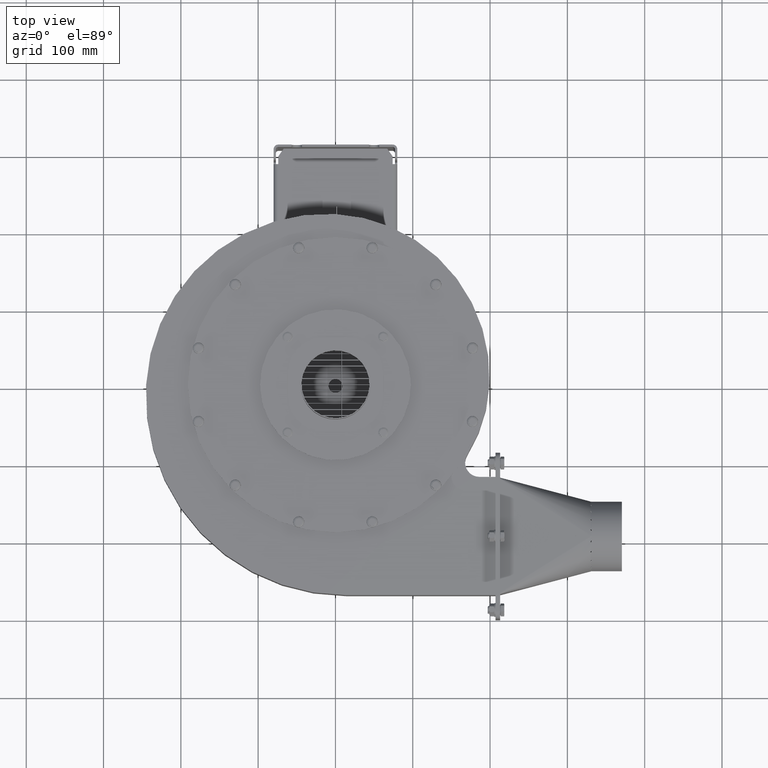
[diagram: clean part render]
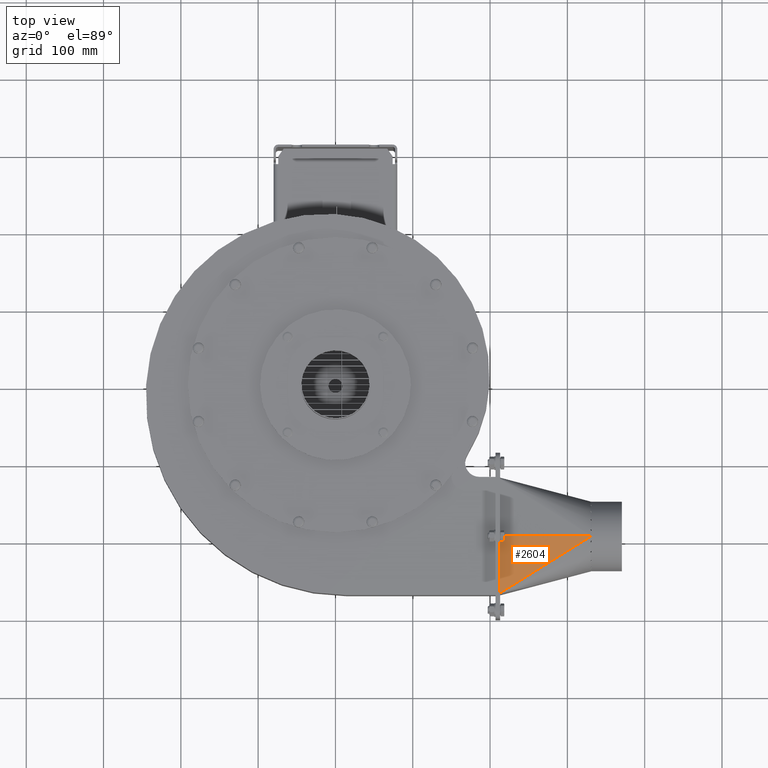
[diagram: same view with one face highlighted and labeled with its STEP entity id]
A machine part, top view. The second image highlights one B-rep face of the part: STEP entity #2604.
In plain terms, the highlighted planar face has unit normal (-0.0634, -0, 0.998).
Its self-contained STEP definition (entity closure, byte-faithful):
#2604 = ADVANCED_FACE( '', ( #6559 ), #6560, .T. );
#6559 = FACE_OUTER_BOUND( '', #12945, .T. );
#6560 = PLANE( '', #12946 );
#12945 = EDGE_LOOP( '', ( #20712, #20713, #20714 ) );
#12946 = AXIS2_PLACEMENT_3D( '', #20715, #20716, #20717 );
#20712 = ORIENTED_EDGE( '', *, *, #35639, .T. );
#20713 = ORIENTED_EDGE( '', *, *, #35640, .F. );
#20714 = ORIENTED_EDGE( '', *, *, #35641, .T. );
#20715 = CARTESIAN_POINT( '', ( -1.11022302462516E-013, -37.3491175050518, -2.37388458718555 ) );
#20716 = DIRECTION( '', ( 1.11022302462516E-016, -0.997986205716983, -0.0634313266345541 ) );
#20717 = DIRECTION( '', ( 5.55111512312578E-017, 0.0634313266345541, -0.997986205716983 ) );
#35639 = EDGE_CURVE( '', #42284, #42285, #42286, .T. );
#35640 = EDGE_CURVE( '', #42287, #42285, #42288, .T. );
#35641 = EDGE_CURVE( '', #42287, #42284, #42289, .T. );
#42284 = VERTEX_POINT( '', #52046 );
#42285 = VERTEX_POINT( '', #52047 );
#42286 = B_SPLINE_CURVE_WITH_KNOTS( '', 1, ( #52048, #52049 ), .UNSPECIFIED., .F., .F., ( 2, 2 ), ( 0.000000000000000, 1.00000000000000 ), .UNSPECIFIED. );
#42287 = VERTEX_POINT( '', #52050 );
#42288 = LINE( '', #52051, #52052 );
#42289 = LINE( '', #52053, #52054 );
#52046 = CARTESIAN_POINT( '', ( 73.5000000000000, -37.5000000000000, -3.46944695195361E-014 ) );
#52047 = CARTESIAN_POINT( '', ( -2.71050543121376E-015, -45.0000000000000, 118.000000000000 ) );
#52048 = CARTESIAN_POINT( '', ( 73.4999999999999, -37.5000000000000, -5.22227321866643E-014 ) );
#52049 = CARTESIAN_POINT( '', ( -9.33949067656968E-014, -45.0000000000001, 118.000000000000 ) );
#52050 = CARTESIAN_POINT( '', ( -9.71445146547012E-014, -37.5000000000000, -4.85722573273506E-014 ) );
#52051 = CARTESIAN_POINT( '', ( -9.71445146547012E-014, -37.5000000000000, -4.85722573273506E-014 ) );
#52052 = VECTOR( '', #65499, 1000.00000000000 );
#52053 = CARTESIAN_POINT( '', ( -9.71445146547012E-014, -37.5000000000000, -4.85722573273506E-014 ) );
#52054 = VECTOR( '', #65500, 1000.00000000000 );
#65499 = DIRECTION( '', ( -5.55111512312578E-017, -0.0634313266345542, 0.997986205716983 ) );
#65500 = DIRECTION( '', ( 1.00000000000000, 1.11022302462516E-016, 5.55111512312578E-017 ) );